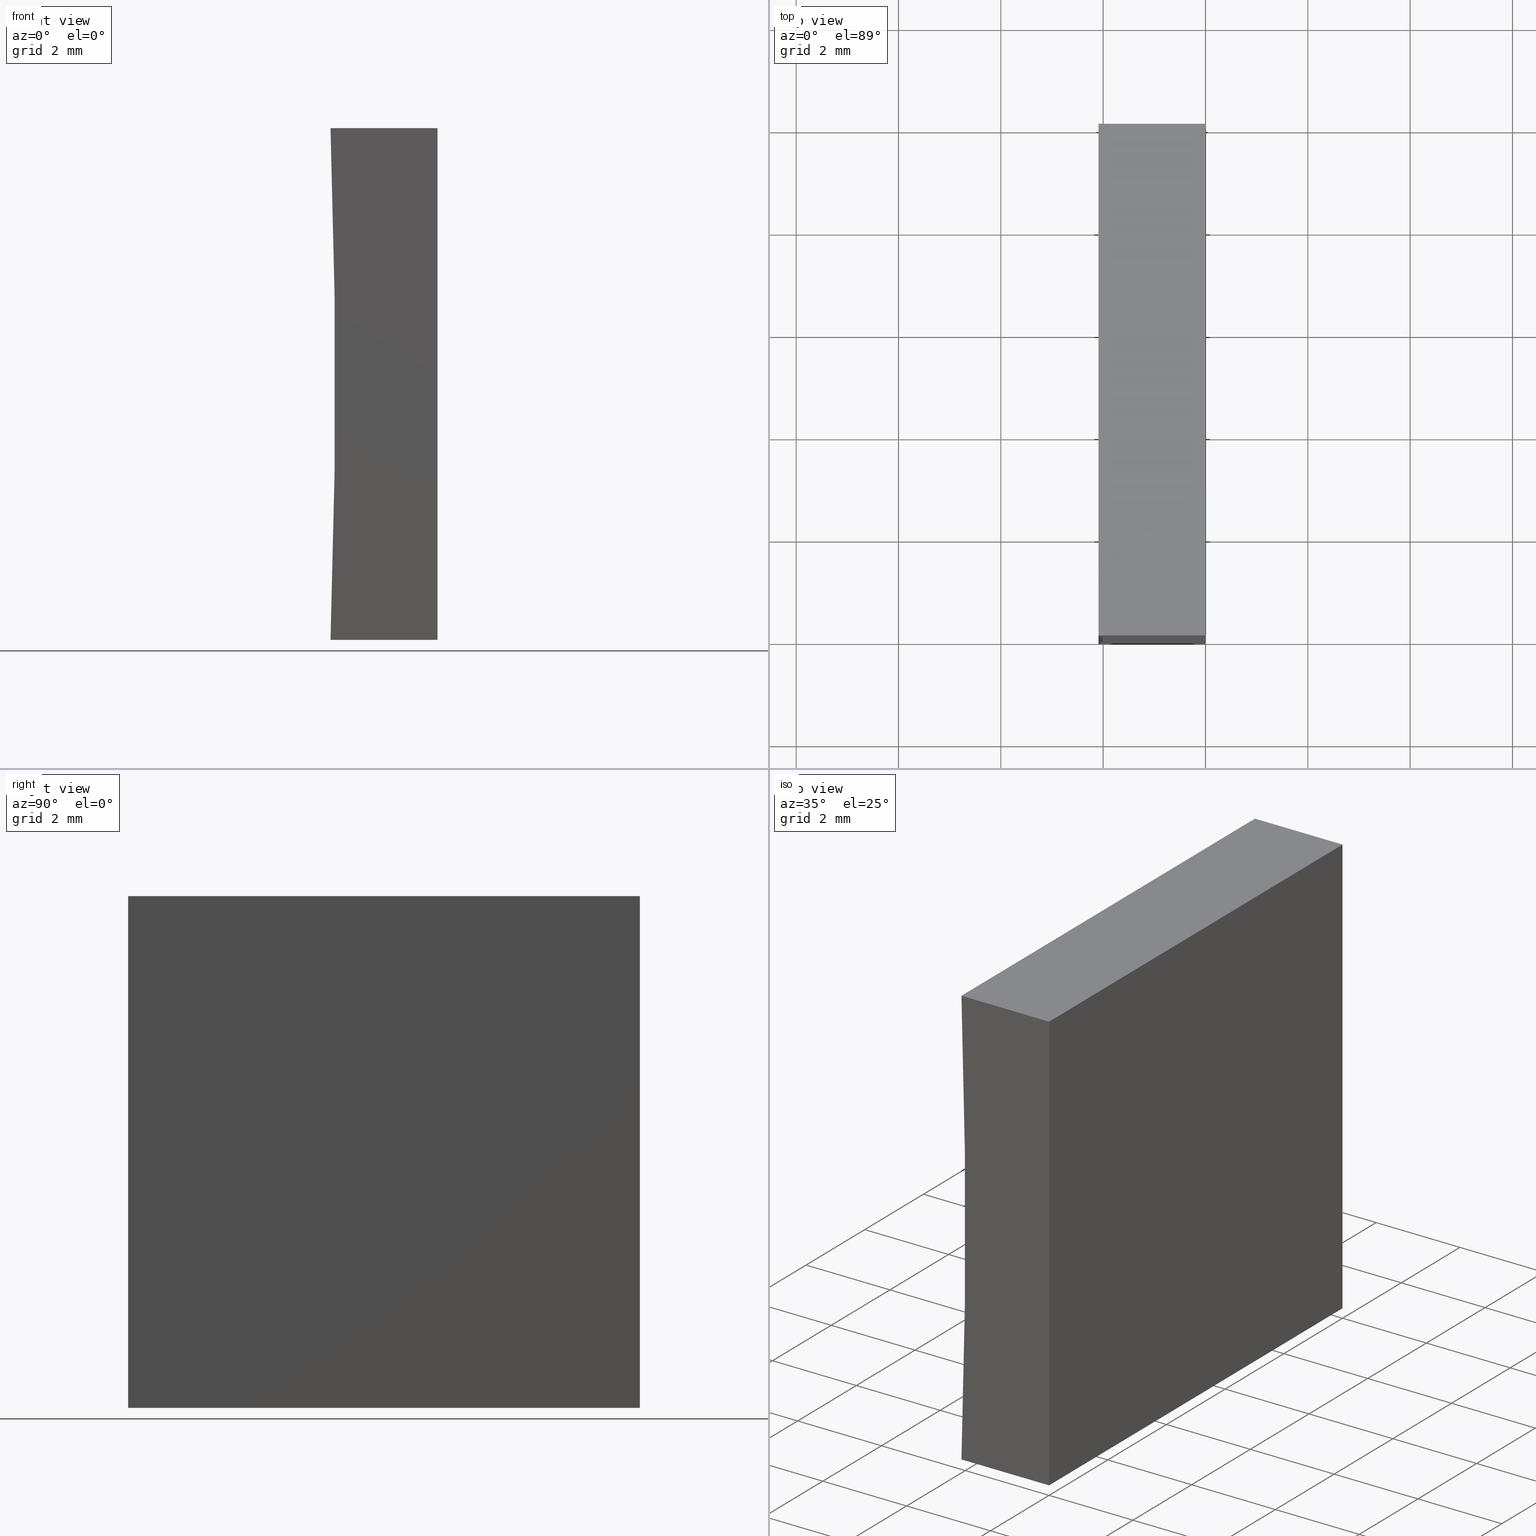
[diagram: canonical four-view strip — front | top / right | iso, engineering-drawing reading convention]
A machine part, canonical four-view strip (front | top / right | iso — engineering-drawing reading convention). The complete STEP part file that produces these views, byte-faithful:
ISO-10303-21;
HEADER;
FILE_DESCRIPTION (( 'STEP AP214' ),
    '1' );
FILE_NAME ('155474.STEP',
    '2019-07-03T06:24:31',
    ( 'user' ),
    ( '΢���й�' ),
    'SwSTEP 2.0',
    'SolidWorks 2016',
    '' );
FILE_SCHEMA (( 'AUTOMOTIVE_DESIGN' ));
ENDSEC;

DATA;
#1 =( NAMED_UNIT ( * ) PLANE_ANGLE_UNIT ( ) SI_UNIT ( $, .RADIAN. ) );
#2 = CARTESIAN_POINT ( 'NONE',  ( -2.090906084755539000, 10.00000000000000000, 9.999999999999998200 ) ) ;
#3 = PRODUCT ( '155474', '155474', '', ( #149 ) ) ;
#4 = DIRECTION ( 'NONE',  ( -0.0000000000000000000, -1.000000000000000000, -0.0000000000000000000 ) ) ;
#5 = AXIS2_PLACEMENT_3D ( 'NONE', #28, #153, #75 ) ;
#6 = VERTEX_POINT ( 'NONE', #71 ) ;
#7 = VECTOR ( 'NONE', #141, 1000.000000000000000 ) ;
#8 = COLOUR_RGB ( '',1.000000000000000000, 1.000000000000000000, 1.000000000000000000 ) ;
#9 = ORIENTED_EDGE ( 'NONE', *, *, #92, .T. ) ;
#10 = FILL_AREA_STYLE ('',( #67 ) ) ;
#11 = DIRECTION ( 'NONE',  ( 0.0000000000000000000, 1.000000000000000000, 0.0000000000000000000 ) ) ;
#12 = ORIENTED_EDGE ( 'NONE', *, *, #60, .T. ) ;
#13 = DIRECTION ( 'NONE',  ( -1.000000000000000000, 0.0000000000000000000, 8.296515508871473500E-016 ) ) ;
#14 = AXIS2_PLACEMENT_3D ( 'NONE', #24, #118, #18 ) ;
#15 = CARTESIAN_POINT ( 'NONE',  ( 0.0000000000000000000, 10.00000000000000000, 0.0000000000000000000 ) ) ;
#16 = FACE_OUTER_BOUND ( 'NONE', #162, .T. ) ;
#17 = SURFACE_STYLE_FILL_AREA ( #10 ) ;
#18 = DIRECTION ( 'NONE',  ( 0.0000000000000000000, -0.0000000000000000000, 1.000000000000000000 ) ) ;
#19 = PRODUCT_DEFINITION ( 'δ֪', '', #105, #48 ) ;
#20 =( NAMED_UNIT ( * ) SI_UNIT ( $, .STERADIAN. ) SOLID_ANGLE_UNIT ( ) );
#21 = VERTEX_POINT ( 'NONE', #44 ) ;
#22 = DIRECTION ( 'NONE',  ( 0.0000000000000000000, 0.0000000000000000000, 1.000000000000000000 ) ) ;
#23 = VERTEX_POINT ( 'NONE', #157 ) ;
#24 = CARTESIAN_POINT ( 'NONE',  ( -139.5500000000000100, 10.00000000000000000, 5.000000000000016000 ) ) ;
#25 =( GEOMETRIC_REPRESENTATION_CONTEXT ( 3 ) GLOBAL_UNCERTAINTY_ASSIGNED_CONTEXT ( ( #170 ) ) GLOBAL_UNIT_ASSIGNED_CONTEXT ( ( #108, #1, #137 ) ) REPRESENTATION_CONTEXT ( 'NONE', 'WORKASPACE' ) );
#26 = LINE ( 'NONE', #97, #134 ) ;
#27 = ORIENTED_EDGE ( 'NONE', *, *, #70, .T. ) ;
#28 = CARTESIAN_POINT ( 'NONE',  ( -139.5500000000000100, 10.00000000000000000, 5.000000000000016000 ) ) ;
#29 = EDGE_LOOP ( 'NONE', ( #104, #102, #86, #159 ) ) ;
#30 = DIRECTION ( 'NONE',  ( -0.0000000000000000000, -1.000000000000000000, -0.0000000000000000000 ) ) ;
#31 = AXIS2_PLACEMENT_3D ( 'NONE', #113, #30, #22 ) ;
#32 = DIRECTION ( 'NONE',  ( -0.0000000000000000000, -1.000000000000000000, -0.0000000000000000000 ) ) ;
#33 = DIRECTION ( 'NONE',  ( -6.123233995736766000E-017, -0.0000000000000000000, -1.000000000000000000 ) ) ;
#34 = LINE ( 'NONE', #89, #196 ) ;
#35 = PLANE ( 'NONE',  #140 ) ;
#36 = ORIENTED_EDGE ( 'NONE', *, *, #78, .T. ) ;
#37 = COLOUR_RGB ( '',1.000000000000000000, 1.000000000000000000, 1.000000000000000000 ) ;
#38 = STYLED_ITEM ( 'NONE', ( #166 ), #47 ) ;
#39 =( NAMED_UNIT ( * ) SI_UNIT ( $, .STERADIAN. ) SOLID_ANGLE_UNIT ( ) );
#40 = STYLED_ITEM ( 'NONE', ( #82 ), #79 ) ;
#41 = FILL_AREA_STYLE ('',( #111 ) ) ;
#42 = CARTESIAN_POINT ( 'NONE',  ( 6.123233995736766300E-016, 0.0000000000000000000, 10.00000000000000000 ) ) ;
#43 = ORIENTED_EDGE ( 'NONE', *, *, #123, .F. ) ;
#44 = CARTESIAN_POINT ( 'NONE',  ( -2.090906084755511400, 0.0000000000000000000, 2.602085213965210600E-015 ) ) ;
#45 = CARTESIAN_POINT ( 'NONE',  ( 0.0000000000000000000, 10.00000000000000000, 0.0000000000000000000 ) ) ;
#46 = ADVANCED_FACE ( 'NONE', ( #49 ), #35, .F. ) ;
#47 = ADVANCED_BREP_SHAPE_REPRESENTATION ( '155474', ( #79, #85 ), #132 ) ;
#48 = PRODUCT_DEFINITION_CONTEXT ( 'detailed design', #186, 'design' ) ;
#49 = FACE_OUTER_BOUND ( 'NONE', #178, .T. ) ;
#50 = DIRECTION ( 'NONE',  ( 1.000000000000000000, -0.0000000000000000000, 8.296515508871476500E-016 ) ) ;
#51 = PRESENTATION_LAYER_ASSIGNMENT (  '', '', ( #40 ) ) ;
#52 = FACE_OUTER_BOUND ( 'NONE', #172, .T. ) ;
#53 =( LENGTH_UNIT ( ) NAMED_UNIT ( * ) SI_UNIT ( .MILLI., .METRE. ) );
#54 = PLANE ( 'NONE',  #164 ) ;
#55 = VERTEX_POINT ( 'NONE', #45 ) ;
#56 = MECHANICAL_DESIGN_GEOMETRIC_PRESENTATION_REPRESENTATION (  '', ( #38 ), #74 ) ;
#57 = ADVANCED_FACE ( 'NONE', ( #131 ), #80, .F. ) ;
#58 = VECTOR ( 'NONE', #13, 1000.000000000000000 ) ;
#59 = VERTEX_POINT ( 'NONE', #175 ) ;
#60 = EDGE_CURVE ( 'NONE', #55, #203, #124, .T. ) ;
#61 = VECTOR ( 'NONE', #32, 1000.000000000000000 ) ;
#62 = LINE ( 'NONE', #127, #73 ) ;
#63 =( NAMED_UNIT ( * ) PLANE_ANGLE_UNIT ( ) SI_UNIT ( $, .RADIAN. ) );
#64 = CARTESIAN_POINT ( 'NONE',  ( 6.123233995736766300E-016, 0.0000000000000000000, 10.00000000000000000 ) ) ;
#65 = DIRECTION ( 'NONE',  ( -0.0000000000000000000, -1.000000000000000000, -0.0000000000000000000 ) ) ;
#66 = LINE ( 'NONE', #98, #61 ) ;
#67 = FILL_AREA_STYLE_COLOUR ( '', #37 ) ;
#68 = EDGE_CURVE ( 'NONE', #6, #55, #195, .T. ) ;
#69 = LINE ( 'NONE', #167, #181 ) ;
#70 = EDGE_CURVE ( 'NONE', #201, #6, #26, .T. ) ;
#71 = CARTESIAN_POINT ( 'NONE',  ( 6.123233995736766300E-016, 10.00000000000000000, 10.00000000000000000 ) ) ;
#72 = PRODUCT_DEFINITION_SHAPE ( 'NONE', 'NONE',  #19 ) ;
#73 = VECTOR ( 'NONE', #4, 1000.000000000000000 ) ;
#74 =( GEOMETRIC_REPRESENTATION_CONTEXT ( 3 ) GLOBAL_UNCERTAINTY_ASSIGNED_CONTEXT ( ( #135 ) ) GLOBAL_UNIT_ASSIGNED_CONTEXT ( ( #53, #107, #20 ) ) REPRESENTATION_CONTEXT ( 'NONE', 'WORKASPACE' ) );
#75 = DIRECTION ( 'NONE',  ( 0.0000000000000000000, 0.0000000000000000000, -1.000000000000000000 ) ) ;
#76 = FACE_OUTER_BOUND ( 'NONE', #193, .T. ) ;
#77 = CARTESIAN_POINT ( 'NONE',  ( 0.0000000000000000000, 0.0000000000000000000, 0.0000000000000000000 ) ) ;
#78 = EDGE_CURVE ( 'NONE', #21, #59, #100, .T. ) ;
#79 = MANIFOLD_SOLID_BREP ( '͹̨-����1', #189 ) ;
#80 = CYLINDRICAL_SURFACE ( 'NONE', #5, 137.5500000000000100 ) ;
#81 = DIRECTION ( 'NONE',  ( -1.000000000000000000, 0.0000000000000000000, 6.123233995736766000E-017 ) ) ;
#82 = PRESENTATION_STYLE_ASSIGNMENT (( #109 ) ) ;
#83 = ORIENTED_EDGE ( 'NONE', *, *, #152, .T. ) ;
#84 = DIRECTION ( 'NONE',  ( 8.296515508871474500E-016, -0.0000000000000000000, 1.000000000000000000 ) ) ;
#85 = AXIS2_PLACEMENT_3D ( 'NONE', #188, #163, #101 ) ;
#86 = ORIENTED_EDGE ( 'NONE', *, *, #146, .F. ) ;
#87 = ORIENTED_EDGE ( 'NONE', *, *, #146, .T. ) ;
#88 = AXIS2_PLACEMENT_3D ( 'NONE', #199, #115, #182 ) ;
#89 = CARTESIAN_POINT ( 'NONE',  ( 0.0000000000000000000, 0.0000000000000000000, 0.0000000000000000000 ) ) ;
#90 = ORIENTED_EDGE ( 'NONE', *, *, #70, .F. ) ;
#91 = PRODUCT_RELATED_PRODUCT_CATEGORY ( 'part', '', ( #3 ) ) ;
#92 = EDGE_CURVE ( 'NONE', #203, #21, #62, .T. ) ;
#93 = ORIENTED_EDGE ( 'NONE', *, *, #117, .F. ) ;
#94 = ORIENTED_EDGE ( 'NONE', *, *, #174, .T. ) ;
#95 = PLANE ( 'NONE',  #106 ) ;
#96 = DIRECTION ( 'NONE',  ( -1.000000000000000000, 0.0000000000000000000, -8.296515508871477500E-016 ) ) ;
#97 = CARTESIAN_POINT ( 'NONE',  ( 6.123233995736766300E-016, 10.00000000000000000, 10.00000000000000000 ) ) ;
#98 = CARTESIAN_POINT ( 'NONE',  ( 0.0000000000000000000, 10.00000000000000000, 0.0000000000000000000 ) ) ;
#99 = CIRCLE ( 'NONE', #88, 137.5500000000000100 ) ;
#100 = CIRCLE ( 'NONE', #31, 137.5500000000000100 ) ;
#101 = DIRECTION ( 'NONE',  ( 1.000000000000000000, 0.0000000000000000000, 0.0000000000000000000 ) ) ;
#102 = ORIENTED_EDGE ( 'NONE', *, *, #174, .F. ) ;
#103 = PLANE ( 'NONE',  #14 ) ;
#104 = ORIENTED_EDGE ( 'NONE', *, *, #152, .F. ) ;
#105 = PRODUCT_DEFINITION_FORMATION_WITH_SPECIFIED_SOURCE ( '�κ�', '', #3, .NOT_KNOWN. ) ;
#106 = AXIS2_PLACEMENT_3D ( 'NONE', #197, #183, #96 ) ;
#107 =( NAMED_UNIT ( * ) PLANE_ANGLE_UNIT ( ) SI_UNIT ( $, .RADIAN. ) );
#108 =( LENGTH_UNIT ( ) NAMED_UNIT ( * ) SI_UNIT ( .MILLI., .METRE. ) );
#109 = SURFACE_STYLE_USAGE ( .BOTH. , #143 ) ;
#110 = LINE ( 'NONE', #77, #7 ) ;
#111 = FILL_AREA_STYLE_COLOUR ( '', #8 ) ;
#112 = AXIS2_PLACEMENT_3D ( 'NONE', #168, #81, #191 ) ;
#113 = CARTESIAN_POINT ( 'NONE',  ( -139.5500000000000100, 0.0000000000000000000, 5.000000000000016000 ) ) ;
#114 = UNCERTAINTY_MEASURE_WITH_UNIT (LENGTH_MEASURE( 1.000000000000000100E-005 ), #165, 'distance_accuracy_value', 'NONE');
#115 = DIRECTION ( 'NONE',  ( -0.0000000000000000000, -1.000000000000000000, -0.0000000000000000000 ) ) ;
#116 = ADVANCED_FACE ( 'NONE', ( #204 ), #54, .F. ) ;
#117 = EDGE_CURVE ( 'NONE', #203, #201, #99, .T. ) ;
#118 = DIRECTION ( 'NONE',  ( 0.0000000000000000000, 1.000000000000000000, 0.0000000000000000000 ) ) ;
#119 = VECTOR ( 'NONE', #33, 1000.000000000000000 ) ;
#120 = CARTESIAN_POINT ( 'NONE',  ( -139.5500000000000100, 0.0000000000000000000, 5.000000000000016000 ) ) ;
#121 = VECTOR ( 'NONE', #158, 1000.000000000000000 ) ;
#122 = ORIENTED_EDGE ( 'NONE', *, *, #68, .T. ) ;
#123 = EDGE_CURVE ( 'NONE', #55, #23, #66, .T. ) ;
#124 = LINE ( 'NONE', #126, #58 ) ;
#125 = SHAPE_DEFINITION_REPRESENTATION ( #72, #47 ) ;
#126 = CARTESIAN_POINT ( 'NONE',  ( 0.0000000000000000000, 10.00000000000000000, 0.0000000000000000000 ) ) ;
#127 = CARTESIAN_POINT ( 'NONE',  ( -2.090906084755511400, 10.00000000000000000, 2.602085213965210600E-015 ) ) ;
#128 = ORIENTED_EDGE ( 'NONE', *, *, #117, .T. ) ;
#129 = ADVANCED_FACE ( 'NONE', ( #52 ), #103, .T. ) ;
#130 = DIRECTION ( 'NONE',  ( -0.0000000000000000000, -1.000000000000000000, -0.0000000000000000000 ) ) ;
#131 = FACE_OUTER_BOUND ( 'NONE', #187, .T. ) ;
#132 =( GEOMETRIC_REPRESENTATION_CONTEXT ( 3 ) GLOBAL_UNCERTAINTY_ASSIGNED_CONTEXT ( ( #114 ) ) GLOBAL_UNIT_ASSIGNED_CONTEXT ( ( #165, #63, #39 ) ) REPRESENTATION_CONTEXT ( 'NONE', 'WORKASPACE' ) );
#133 = ORIENTED_EDGE ( 'NONE', *, *, #123, .T. ) ;
#134 = VECTOR ( 'NONE', #50, 1000.000000000000000 ) ;
#135 = UNCERTAINTY_MEASURE_WITH_UNIT (LENGTH_MEASURE( 1.000000000000000100E-005 ), #53, 'distance_accuracy_value', 'NONE');
#136 = EDGE_CURVE ( 'NONE', #6, #184, #169, .T. ) ;
#137 =( NAMED_UNIT ( * ) SI_UNIT ( $, .STERADIAN. ) SOLID_ANGLE_UNIT ( ) );
#138 = SURFACE_STYLE_FILL_AREA ( #41 ) ;
#139 = APPLICATION_CONTEXT ( 'automotive_design' ) ;
#140 = AXIS2_PLACEMENT_3D ( 'NONE', #15, #84, #144 ) ;
#141 = DIRECTION ( 'NONE',  ( -6.123233995736766000E-017, -0.0000000000000000000, -1.000000000000000000 ) ) ;
#142 = ORIENTED_EDGE ( 'NONE', *, *, #136, .F. ) ;
#143 = SURFACE_SIDE_STYLE ('',( #138 ) ) ;
#144 = DIRECTION ( 'NONE',  ( 1.000000000000000000, 0.0000000000000000000, -8.296515508871474500E-016 ) ) ;
#145 = ORIENTED_EDGE ( 'NONE', *, *, #68, .F. ) ;
#146 = EDGE_CURVE ( 'NONE', #59, #184, #147, .T. ) ;
#147 = LINE ( 'NONE', #42, #121 ) ;
#148 = ORIENTED_EDGE ( 'NONE', *, *, #136, .T. ) ;
#149 = PRODUCT_CONTEXT ( 'NONE', #139, 'mechanical' ) ;
#150 = SURFACE_SIDE_STYLE ('',( #17 ) ) ;
#151 = CARTESIAN_POINT ( 'NONE',  ( 0.0000000000000000000, 10.00000000000000000, 0.0000000000000000000 ) ) ;
#152 = EDGE_CURVE ( 'NONE', #23, #21, #34, .T. ) ;
#153 = DIRECTION ( 'NONE',  ( -0.0000000000000000000, -1.000000000000000000, -0.0000000000000000000 ) ) ;
#154 = ORIENTED_EDGE ( 'NONE', *, *, #60, .F. ) ;
#155 = ORIENTED_EDGE ( 'NONE', *, *, #92, .F. ) ;
#156 = CARTESIAN_POINT ( 'NONE',  ( -2.090906084755511400, 10.00000000000000000, 2.602085213965210600E-015 ) ) ;
#157 = CARTESIAN_POINT ( 'NONE',  ( 0.0000000000000000000, 0.0000000000000000000, 0.0000000000000000000 ) ) ;
#158 = DIRECTION ( 'NONE',  ( 1.000000000000000000, -0.0000000000000000000, 8.296515508871476500E-016 ) ) ;
#159 = ORIENTED_EDGE ( 'NONE', *, *, #78, .F. ) ;
#160 = ORIENTED_EDGE ( 'NONE', *, *, #190, .F. ) ;
#161 = SURFACE_STYLE_USAGE ( .BOTH. , #150 ) ;
#162 = EDGE_LOOP ( 'NONE', ( #94, #43, #145, #148 ) ) ;
#163 = DIRECTION ( 'NONE',  ( 0.0000000000000000000, 0.0000000000000000000, 1.000000000000000000 ) ) ;
#164 = AXIS2_PLACEMENT_3D ( 'NONE', #120, #11, #198 ) ;
#165 =( LENGTH_UNIT ( ) NAMED_UNIT ( * ) SI_UNIT ( .MILLI., .METRE. ) );
#166 = PRESENTATION_STYLE_ASSIGNMENT (( #161 ) ) ;
#167 = CARTESIAN_POINT ( 'NONE',  ( -2.090906084755539000, 10.00000000000000000, 9.999999999999998200 ) ) ;
#168 = CARTESIAN_POINT ( 'NONE',  ( 0.0000000000000000000, 10.00000000000000000, 0.0000000000000000000 ) ) ;
#169 = LINE ( 'NONE', #180, #202 ) ;
#170 = UNCERTAINTY_MEASURE_WITH_UNIT (LENGTH_MEASURE( 1.000000000000000100E-005 ), #108, 'distance_accuracy_value', 'NONE');
#171 = PLANE ( 'NONE',  #112 ) ;
#172 = EDGE_LOOP ( 'NONE', ( #12, #128, #27, #122 ) ) ;
#173 = APPLICATION_PROTOCOL_DEFINITION ( 'draft international standard', 'automotive_design', 1998, #186 ) ;
#174 = EDGE_CURVE ( 'NONE', #184, #23, #110, .T. ) ;
#175 = CARTESIAN_POINT ( 'NONE',  ( -2.090906084755539000, 0.0000000000000000000, 9.999999999999998200 ) ) ;
#176 = DIRECTION ( 'NONE',  ( -1.000000000000000000, 0.0000000000000000000, 8.296515508871473500E-016 ) ) ;
#177 = ADVANCED_FACE ( 'NONE', ( #16 ), #171, .F. ) ;
#178 = EDGE_LOOP ( 'NONE', ( #83, #155, #154, #133 ) ) ;
#179 = ORIENTED_EDGE ( 'NONE', *, *, #190, .T. ) ;
#180 = CARTESIAN_POINT ( 'NONE',  ( 6.123233995736766300E-016, 10.00000000000000000, 10.00000000000000000 ) ) ;
#181 = VECTOR ( 'NONE', #65, 1000.000000000000000 ) ;
#182 = DIRECTION ( 'NONE',  ( 0.0000000000000000000, 0.0000000000000000000, 1.000000000000000000 ) ) ;
#183 = DIRECTION ( 'NONE',  ( 8.296515508871477500E-016, 0.0000000000000000000, -1.000000000000000000 ) ) ;
#184 = VERTEX_POINT ( 'NONE', #64 ) ;
#185 = MECHANICAL_DESIGN_GEOMETRIC_PRESENTATION_REPRESENTATION (  '', ( #40 ), #25 ) ;
#186 = APPLICATION_CONTEXT ( 'automotive_design' ) ;
#187 = EDGE_LOOP ( 'NONE', ( #36, #160, #93, #9 ) ) ;
#188 = CARTESIAN_POINT ( 'NONE',  ( 0.0000000000000000000, 0.0000000000000000000, 0.0000000000000000000 ) ) ;
#189 = CLOSED_SHELL ( 'NONE', ( #46, #57, #200, #177, #129, #116 ) ) ;
#190 = EDGE_CURVE ( 'NONE', #201, #59, #69, .T. ) ;
#191 = DIRECTION ( 'NONE',  ( 6.123233995736766000E-017, 0.0000000000000000000, 1.000000000000000000 ) ) ;
#192 = APPLICATION_PROTOCOL_DEFINITION ( 'draft international standard', 'automotive_design', 1998, #139 ) ;
#193 = EDGE_LOOP ( 'NONE', ( #87, #142, #90, #179 ) ) ;
#194 = PRESENTATION_LAYER_ASSIGNMENT (  '', '', ( #38 ) ) ;
#195 = LINE ( 'NONE', #151, #119 ) ;
#196 = VECTOR ( 'NONE', #176, 1000.000000000000000 ) ;
#197 = CARTESIAN_POINT ( 'NONE',  ( 6.123233995736766300E-016, 10.00000000000000000, 10.00000000000000000 ) ) ;
#198 = DIRECTION ( 'NONE',  ( 0.0000000000000000000, -0.0000000000000000000, 1.000000000000000000 ) ) ;
#199 = CARTESIAN_POINT ( 'NONE',  ( -139.5500000000000100, 10.00000000000000000, 5.000000000000016000 ) ) ;
#200 = ADVANCED_FACE ( 'NONE', ( #76 ), #95, .F. ) ;
#201 = VERTEX_POINT ( 'NONE', #2 ) ;
#202 = VECTOR ( 'NONE', #130, 1000.000000000000000 ) ;
#203 = VERTEX_POINT ( 'NONE', #156 ) ;
#204 = FACE_OUTER_BOUND ( 'NONE', #29, .T. ) ;
ENDSEC;
END-ISO-10303-21;
